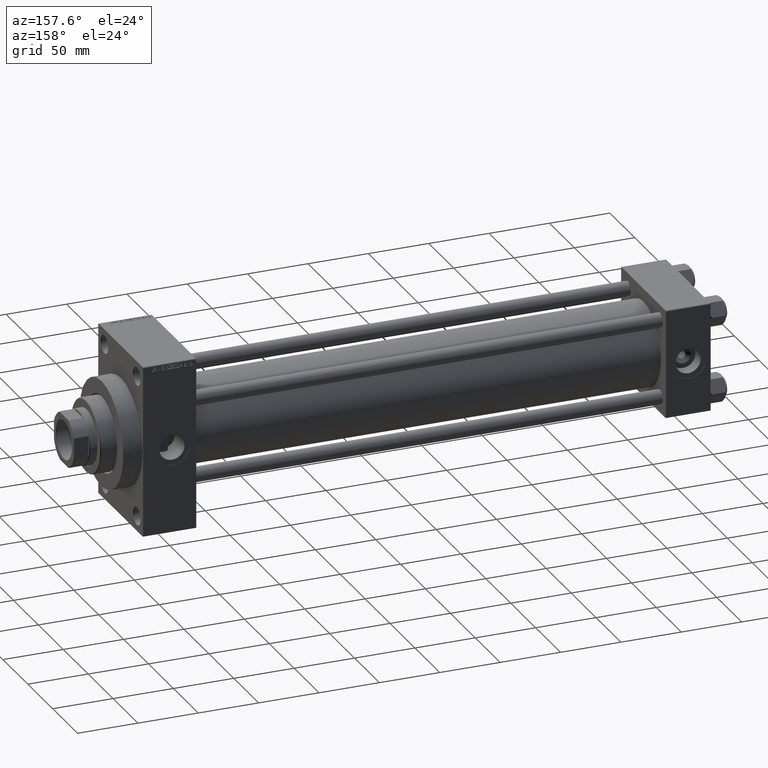
[diagram: clean part render]
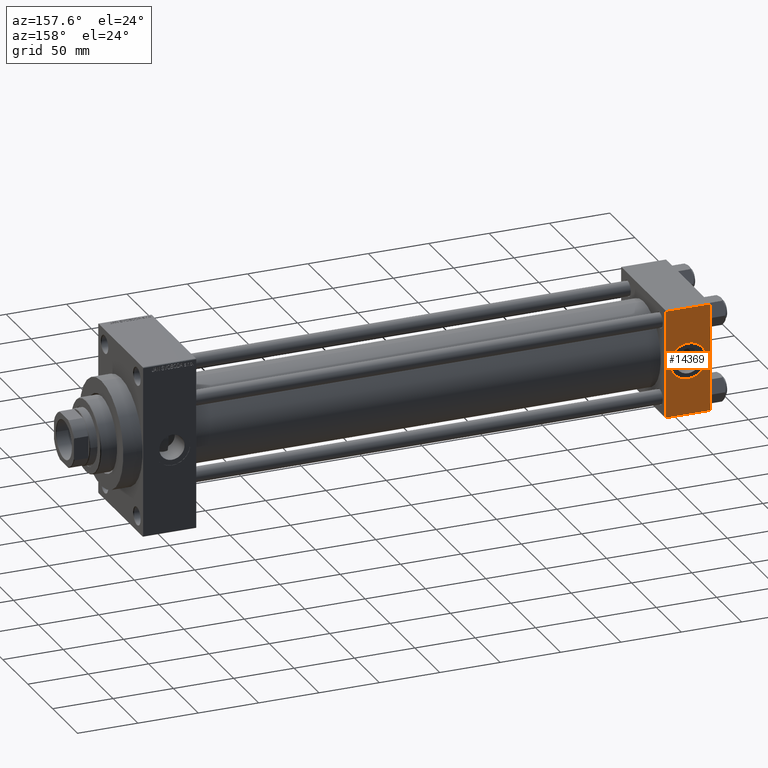
[diagram: same view with one face highlighted and labeled with its STEP entity id]
A machine part, auxiliary view. The second image highlights one B-rep face of the part: STEP entity #14369.
In plain terms, the highlighted planar face has unit normal (0, 1, 0).
Its self-contained STEP definition (entity closure, byte-faithful):
#273 = CARTESIAN_POINT ( 'NONE',  ( 0.000000000000000000, 44.99999999999998579, -44.49999999999995737 ) ) ;
#430 = VECTOR ( 'NONE', #38218, 1000.000000000000000 ) ;
#2986 = VERTEX_POINT ( 'NONE', #41909 ) ;
#3647 = EDGE_CURVE ( 'NONE', #2986, #17773, #42749, .T. ) ;
#4254 = VERTEX_POINT ( 'NONE', #44066 ) ;
#4318 = EDGE_LOOP ( 'NONE', ( #6527, #47464, #20354, #4998 ) ) ;
#4998 = ORIENTED_EDGE ( 'NONE', *, *, #13321, .T. ) ;
#6527 = ORIENTED_EDGE ( 'NONE', *, *, #40373, .T. ) ;
#7396 = EDGE_CURVE ( 'NONE', #4254, #27902, #17357, .T. ) ;
#7737 = VERTEX_POINT ( 'NONE', #14498 ) ;
#8364 = CARTESIAN_POINT ( 'NONE',  ( 0.000000000000000000, 44.99999999999998579, 45.00000000000001421 ) ) ;
#8588 = CARTESIAN_POINT ( 'NONE',  ( 18.50000000000000000, 44.99999999999998579, 0.000000000000000000 ) ) ;
#9375 = VECTOR ( 'NONE', #40157, 1000.000000000000000 ) ;
#10910 = DIRECTION ( 'NONE',  ( 0.000000000000000000, 1.000000000000000000, 0.000000000000000000 ) ) ;
#13321 = EDGE_CURVE ( 'NONE', #2986, #7737, #19991, .T. ) ;
#14161 = LINE ( 'NONE', #25843, #39472 ) ;
#14369 = ADVANCED_FACE ( 'NONE', ( #21492, #24478 ), #39686, .T. ) ;
#14498 = CARTESIAN_POINT ( 'NONE',  ( 37.00000000000000000, 44.99999999999998579, 44.50000000000001421 ) ) ;
#15993 = EDGE_LOOP ( 'NONE', ( #32800, #21712 ) ) ;
#16063 = DIRECTION ( 'NONE',  ( 0.000000000000000000, 1.000000000000000000, 0.000000000000000000 ) ) ;
#17357 = CIRCLE ( 'NONE', #47574, 15.00000000000000178 ) ;
#17390 = CARTESIAN_POINT ( 'NONE',  ( 18.50000000000000000, 44.99999999999998579, 0.000000000000000000 ) ) ;
#17773 = VERTEX_POINT ( 'NONE', #273 ) ;
#18381 = DIRECTION ( 'NONE',  ( 0.000000000000000000, 0.000000000000000000, 1.000000000000000000 ) ) ;
#19162 = CIRCLE ( 'NONE', #37490, 15.00000000000000178 ) ;
#19743 = CARTESIAN_POINT ( 'NONE',  ( 37.00000000000000000, 44.99999999999998579, 44.50000000000001421 ) ) ;
#19991 = LINE ( 'NONE', #19743, #430 ) ;
#20354 = ORIENTED_EDGE ( 'NONE', *, *, #3647, .F. ) ;
#20740 = DIRECTION ( 'NONE',  ( 0.000000000000000000, -0.000000000000000000, 1.000000000000000000 ) ) ;
#21492 = FACE_BOUND ( 'NONE', #15993, .T. ) ;
#21712 = ORIENTED_EDGE ( 'NONE', *, *, #33814, .F. ) ;
#24478 = FACE_OUTER_BOUND ( 'NONE', #4318, .T. ) ;
#24951 = CARTESIAN_POINT ( 'NONE',  ( 37.00000000000000000, 44.99999999999998579, 45.00000000000001421 ) ) ;
#25843 = CARTESIAN_POINT ( 'NONE',  ( 37.00000000000000000, 44.99999999999998579, -44.49999999999998579 ) ) ;
#26809 = DIRECTION ( 'NONE',  ( 0.000000000000000000, 0.000000000000000000, -1.000000000000000000 ) ) ;
#27902 = VERTEX_POINT ( 'NONE', #34264 ) ;
#28424 = CARTESIAN_POINT ( 'NONE',  ( 37.00000000000000000, 44.99999999999998579, -44.49999999999995737 ) ) ;
#29055 = AXIS2_PLACEMENT_3D ( 'NONE', #43427, #43686, #20740 ) ;
#31921 = LINE ( 'NONE', #24951, #9375 ) ;
#32800 = ORIENTED_EDGE ( 'NONE', *, *, #7396, .F. ) ;
#33814 = EDGE_CURVE ( 'NONE', #27902, #4254, #19162, .T. ) ;
#34264 = CARTESIAN_POINT ( 'NONE',  ( 18.50000000000000355, 44.99999999999998579, -15.00000000000000178 ) ) ;
#36864 = EDGE_CURVE ( 'NONE', #40310, #17773, #14161, .T. ) ;
#37490 = AXIS2_PLACEMENT_3D ( 'NONE', #17390, #10910, #18381 ) ;
#38218 = DIRECTION ( 'NONE',  ( 1.000000000000000000, 0.000000000000000000, 0.000000000000000000 ) ) ;
#39472 = VECTOR ( 'NONE', #45038, 1000.000000000000000 ) ;
#39686 = PLANE ( 'NONE',  #29055 ) ;
#40157 = DIRECTION ( 'NONE',  ( 0.000000000000000000, 0.000000000000000000, -1.000000000000000000 ) ) ;
#40310 = VERTEX_POINT ( 'NONE', #28424 ) ;
#40373 = EDGE_CURVE ( 'NONE', #7737, #40310, #31921, .T. ) ;
#41909 = CARTESIAN_POINT ( 'NONE',  ( 0.000000000000000000, 44.99999999999998579, 44.50000000000001421 ) ) ;
#42721 = DIRECTION ( 'NONE',  ( 0.000000000000000000, 0.000000000000000000, 1.000000000000000000 ) ) ;
#42749 = LINE ( 'NONE', #8364, #47577 ) ;
#43427 = CARTESIAN_POINT ( 'NONE',  ( 37.00000000000000000, 44.99999999999998579, 45.00000000000001421 ) ) ;
#43686 = DIRECTION ( 'NONE',  ( -0.000000000000000000, 1.000000000000000000, 0.000000000000000000 ) ) ;
#44066 = CARTESIAN_POINT ( 'NONE',  ( 18.50000000000000000, 44.99999999999998579, 15.00000000000000178 ) ) ;
#45038 = DIRECTION ( 'NONE',  ( -1.000000000000000000, 0.000000000000000000, 0.000000000000000000 ) ) ;
#47464 = ORIENTED_EDGE ( 'NONE', *, *, #36864, .T. ) ;
#47574 = AXIS2_PLACEMENT_3D ( 'NONE', #8588, #16063, #42721 ) ;
#47577 = VECTOR ( 'NONE', #26809, 1000.000000000000000 ) ;